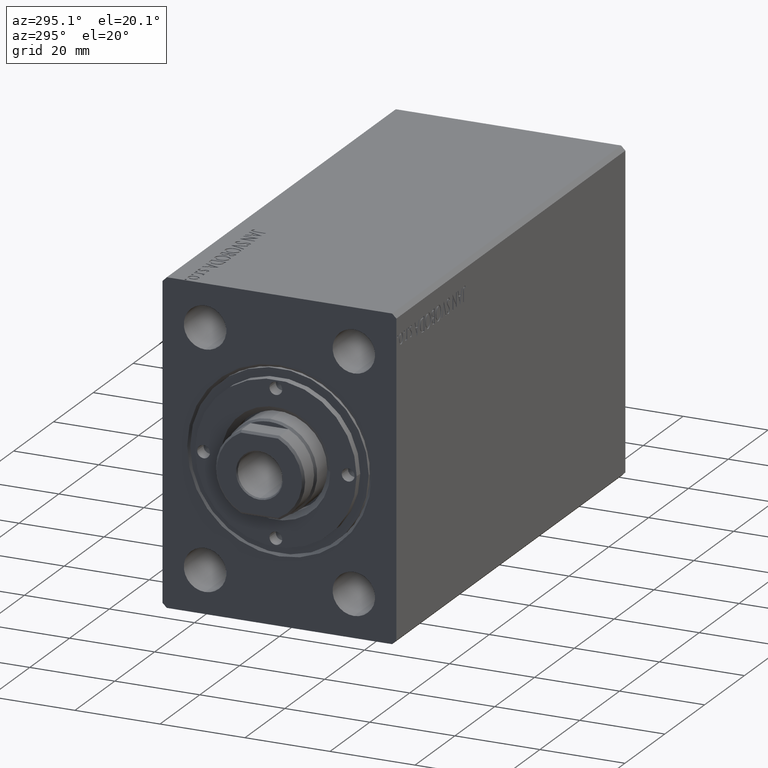
[diagram: clean part render]
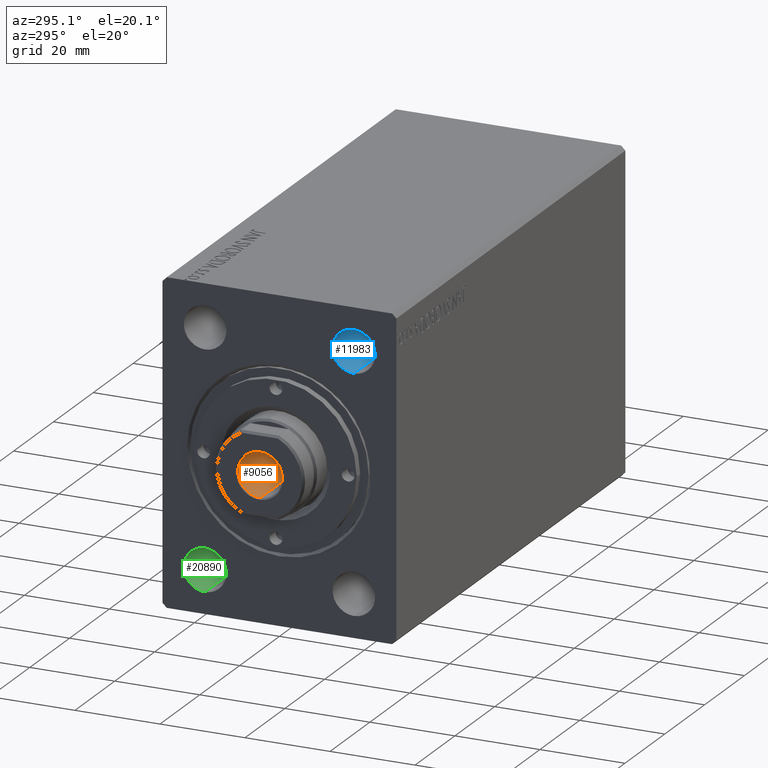
[diagram: same view with three faces highlighted in distinct colors, each labeled with its STEP entity id]
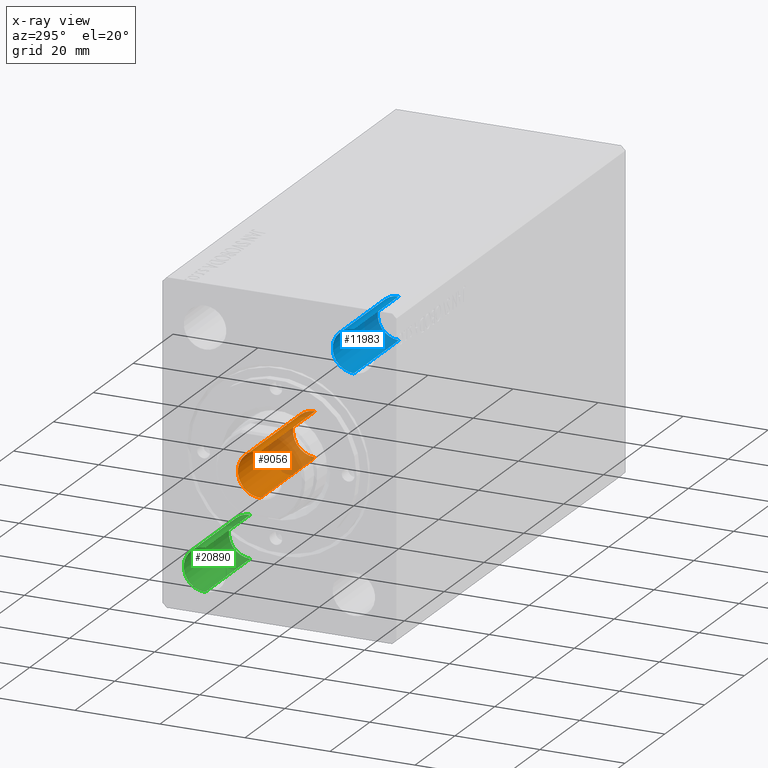
[diagram: x-ray of the same camera — body ghosted, the three highlighted faces saturated]
A machine part, auxiliary view with three faces highlighted in distinct colors.
The next image is the same camera in x-ray (body ghosted, the three faces saturated) — at least one of them is partly hidden behind the body in this view.
Their STEP definitions:

[orange] entity #9056 — the highlighted cylindrical surface (edge-blend (fillet) strip) has radius 5.25 mm, axis along (-1, 0, 0).
#1833 = EDGE_CURVE ( 'NONE', #14322, #12120, #2957, .T. ) ;
#2649 = DIRECTION ( 'NONE',  ( 0.000000000000000000, 0.000000000000000000, 1.000000000000000000 ) ) ;
#2957 = LINE ( 'NONE', #36890, #5351 ) ;
#4199 = ORIENTED_EDGE ( 'NONE', *, *, #30542, .T. ) ;
#5351 = VECTOR ( 'NONE', #32056, 1000.000000000000000 ) ;
#5750 = ORIENTED_EDGE ( 'NONE', *, *, #1833, .F. ) ;
#6673 = CARTESIAN_POINT ( 'NONE',  ( -5.249999999999995559, 6.429395695523600208E-16, 110.9000000000000199 ) ) ;
#6983 = EDGE_LOOP ( 'NONE', ( #5750, #37624, #37239, #4199 ) ) ;
#7750 = DIRECTION ( 'NONE',  ( 1.000000000000000000, 0.000000000000000000, 0.000000000000000000 ) ) ;
#9056 = ADVANCED_FACE ( 'NONE', ( #33706 ), #16773, .F. ) ;
#10065 = DIRECTION ( 'NONE',  ( 1.000000000000000000, 0.000000000000000000, 0.000000000000000000 ) ) ;
#10133 = AXIS2_PLACEMENT_3D ( 'NONE', #26760, #2649, #16288 ) ;
#12120 = VERTEX_POINT ( 'NONE', #6673 ) ;
#13836 = CARTESIAN_POINT ( 'NONE',  ( -5.249999999999994671, 6.429395695523597250E-16, 83.20000000000001705 ) ) ;
#14322 = VERTEX_POINT ( 'NONE', #13836 ) ;
#16288 = DIRECTION ( 'NONE',  ( 1.000000000000000000, 0.000000000000000000, 0.000000000000000000 ) ) ;
#16773 = CYLINDRICAL_SURFACE ( 'NONE', #23525, 5.249999999999995559 ) ;
#18275 = CIRCLE ( 'NONE', #23965, 5.249999999999994671 ) ;
#19115 = CARTESIAN_POINT ( 'NONE',  ( 5.249999999999995559, 0.000000000000000000, 110.9000000000000199 ) ) ;
#20115 = CIRCLE ( 'NONE', #10133, 5.249999999999995559 ) ;
#23249 = VECTOR ( 'NONE', #31662, 1000.000000000000000 ) ;
#23525 = AXIS2_PLACEMENT_3D ( 'NONE', #30364, #37271, #10065 ) ;
#23965 = AXIS2_PLACEMENT_3D ( 'NONE', #28949, #41659, #7750 ) ;
#26760 = CARTESIAN_POINT ( 'NONE',  ( 0.000000000000000000, 0.000000000000000000, 110.9000000000000199 ) ) ;
#28213 = VERTEX_POINT ( 'NONE', #19115 ) ;
#28949 = CARTESIAN_POINT ( 'NONE',  ( 0.000000000000000000, 0.000000000000000000, 83.20000000000001705 ) ) ;
#30150 = CARTESIAN_POINT ( 'NONE',  ( 5.249999999999994671, 0.000000000000000000, 83.20000000000001705 ) ) ;
#30364 = CARTESIAN_POINT ( 'NONE',  ( 0.000000000000000000, 0.000000000000000000, 111.2000000000000028 ) ) ;
#30542 = EDGE_CURVE ( 'NONE', #28213, #12120, #20115, .T. ) ;
#31662 = DIRECTION ( 'NONE',  ( -0.000000000000000000, -0.000000000000000000, 1.000000000000000000 ) ) ;
#32056 = DIRECTION ( 'NONE',  ( -0.000000000000000000, -0.000000000000000000, 1.000000000000000000 ) ) ;
#33706 = FACE_OUTER_BOUND ( 'NONE', #6983, .T. ) ;
#35236 = LINE ( 'NONE', #39035, #23249 ) ;
#36890 = CARTESIAN_POINT ( 'NONE',  ( -5.249999999999995559, 6.429395695523600208E-16, 111.2000000000000028 ) ) ;
#37239 = ORIENTED_EDGE ( 'NONE', *, *, #40911, .T. ) ;
#37271 = DIRECTION ( 'NONE',  ( -0.000000000000000000, -0.000000000000000000, 1.000000000000000000 ) ) ;
#37624 = ORIENTED_EDGE ( 'NONE', *, *, #42018, .F. ) ;
#39035 = CARTESIAN_POINT ( 'NONE',  ( 5.249999999999995559, 0.000000000000000000, 111.2000000000000028 ) ) ;
#40911 = EDGE_CURVE ( 'NONE', #42783, #28213, #35236, .T. ) ;
#41659 = DIRECTION ( 'NONE',  ( -0.000000000000000000, -0.000000000000000000, 1.000000000000000000 ) ) ;
#42018 = EDGE_CURVE ( 'NONE', #42783, #14322, #18275, .T. ) ;
#42783 = VERTEX_POINT ( 'NONE', #30150 ) ;

[blue] entity #11983 — the highlighted cylindrical surface (edge-blend (fillet) strip) has radius 5 mm, axis along (-1, -0, -0).
#194 = DIRECTION ( 'NONE',  ( -1.000000000000000000, -0.000000000000000000, -0.000000000000000000 ) ) ;
#1517 = CARTESIAN_POINT ( 'NONE',  ( 1.224646799147350495E-16, -17.50000000000000000, 27.50000000000000355 ) ) ;
#3419 = EDGE_CURVE ( 'NONE', #41405, #21953, #38170, .T. ) ;
#4528 = DIRECTION ( 'NONE',  ( -1.000000000000000000, -0.000000000000000000, -0.000000000000000000 ) ) ;
#4686 = CARTESIAN_POINT ( 'NONE',  ( 1.224646799147350495E-16, -17.50000000000000000, 32.50000000000000000 ) ) ;
#6340 = ORIENTED_EDGE ( 'NONE', *, *, #14561, .T. ) ;
#8774 = LINE ( 'NONE', #32194, #16011 ) ;
#10043 = CYLINDRICAL_SURFACE ( 'NONE', #34449, 4.999999999999997335 ) ;
#10531 = CARTESIAN_POINT ( 'NONE',  ( 22.67000000000000171, -17.50000000000000000, 22.50000000000001066 ) ) ;
#11366 = DIRECTION ( 'NONE',  ( -1.000000000000000000, -0.000000000000000000, -0.000000000000000000 ) ) ;
#11983 = ADVANCED_FACE ( 'NONE', ( #27440 ), #10043, .F. ) ;
#13721 = VECTOR ( 'NONE', #24113, 1000.000000000000000 ) ;
#14561 = EDGE_CURVE ( 'NONE', #41405, #31265, #8774, .T. ) ;
#15916 = EDGE_CURVE ( 'NONE', #31265, #39447, #43907, .T. ) ;
#16011 = VECTOR ( 'NONE', #4528, 1000.000000000000000 ) ;
#17092 = CARTESIAN_POINT ( 'NONE',  ( 22.67000000000000171, -17.50000000000000000, 32.50000000000000000 ) ) ;
#18091 = LINE ( 'NONE', #21220, #13721 ) ;
#18798 = DIRECTION ( 'NONE',  ( 0.000000000000000000, 0.000000000000000000, 1.000000000000000000 ) ) ;
#18943 = AXIS2_PLACEMENT_3D ( 'NONE', #42867, #32609, #18798 ) ;
#19044 = ORIENTED_EDGE ( 'NONE', *, *, #15916, .T. ) ;
#20409 = AXIS2_PLACEMENT_3D ( 'NONE', #1517, #11366, #35663 ) ;
#20528 = DIRECTION ( 'NONE',  ( 0.000000000000000000, 0.000000000000000000, 1.000000000000000000 ) ) ;
#21220 = CARTESIAN_POINT ( 'NONE',  ( 0.000000000000000000, -17.50000000000000000, 22.50000000000000711 ) ) ;
#21953 = VERTEX_POINT ( 'NONE', #10531 ) ;
#24113 = DIRECTION ( 'NONE',  ( -1.000000000000000000, -0.000000000000000000, -0.000000000000000000 ) ) ;
#27307 = CARTESIAN_POINT ( 'NONE',  ( 1.224646799147350495E-16, -17.50000000000000000, 22.50000000000000711 ) ) ;
#27440 = FACE_OUTER_BOUND ( 'NONE', #27650, .T. ) ;
#27650 = EDGE_LOOP ( 'NONE', ( #28652, #38001, #6340, #19044 ) ) ;
#28652 = ORIENTED_EDGE ( 'NONE', *, *, #29858, .F. ) ;
#29858 = EDGE_CURVE ( 'NONE', #21953, #39447, #18091, .T. ) ;
#30555 = CARTESIAN_POINT ( 'NONE',  ( 0.000000000000000000, -17.50000000000000000, 27.50000000000000355 ) ) ;
#31265 = VERTEX_POINT ( 'NONE', #4686 ) ;
#32194 = CARTESIAN_POINT ( 'NONE',  ( 0.000000000000000000, -17.50000000000000000, 32.50000000000000000 ) ) ;
#32609 = DIRECTION ( 'NONE',  ( -1.000000000000000000, -0.000000000000000000, -0.000000000000000000 ) ) ;
#34449 = AXIS2_PLACEMENT_3D ( 'NONE', #30555, #194, #20528 ) ;
#35663 = DIRECTION ( 'NONE',  ( 0.000000000000000000, 0.000000000000000000, 1.000000000000000000 ) ) ;
#38001 = ORIENTED_EDGE ( 'NONE', *, *, #3419, .F. ) ;
#38170 = CIRCLE ( 'NONE', #18943, 4.999999999999997335 ) ;
#39447 = VERTEX_POINT ( 'NONE', #27307 ) ;
#41405 = VERTEX_POINT ( 'NONE', #17092 ) ;
#42867 = CARTESIAN_POINT ( 'NONE',  ( 22.67000000000000171, -17.50000000000000000, 27.50000000000000355 ) ) ;
#43907 = CIRCLE ( 'NONE', #20409, 4.999999999999997335 ) ;

[green] entity #20890 — the highlighted cylindrical surface (edge-blend (fillet) strip) has radius 5 mm, axis along (-1, -0, -0).
#610 = ORIENTED_EDGE ( 'NONE', *, *, #21487, .T. ) ;
#757 = AXIS2_PLACEMENT_3D ( 'NONE', #26885, #33565, #12854 ) ;
#4697 = ORIENTED_EDGE ( 'NONE', *, *, #41695, .F. ) ;
#5184 = FACE_OUTER_BOUND ( 'NONE', #6543, .T. ) ;
#6543 = EDGE_LOOP ( 'NONE', ( #26988, #4697, #40283, #610 ) ) ;
#7426 = CARTESIAN_POINT ( 'NONE',  ( 22.67000000000000171, 17.50000000000000000, -32.49999999999998579 ) ) ;
#7884 = EDGE_CURVE ( 'NONE', #39943, #31590, #40563, .T. ) ;
#8025 = DIRECTION ( 'NONE',  ( 0.000000000000000000, 0.000000000000000000, 1.000000000000000000 ) ) ;
#8334 = CARTESIAN_POINT ( 'NONE',  ( 0.000000000000000000, 17.50000000000000000, -27.49999999999999289 ) ) ;
#8588 = CIRCLE ( 'NONE', #757, 4.999999999999997335 ) ;
#11039 = VERTEX_POINT ( 'NONE', #7426 ) ;
#12854 = DIRECTION ( 'NONE',  ( 0.000000000000000000, 0.000000000000000000, 1.000000000000000000 ) ) ;
#14402 = DIRECTION ( 'NONE',  ( -1.000000000000000000, -0.000000000000000000, -0.000000000000000000 ) ) ;
#14623 = LINE ( 'NONE', #25096, #42298 ) ;
#14708 = AXIS2_PLACEMENT_3D ( 'NONE', #42146, #29215, #8025 ) ;
#16909 = CARTESIAN_POINT ( 'NONE',  ( 22.67000000000000171, 17.50000000000000000, -22.50000000000000000 ) ) ;
#20890 = ADVANCED_FACE ( 'NONE', ( #5184 ), #31974, .F. ) ;
#21487 = EDGE_CURVE ( 'NONE', #31590, #44061, #8588, .T. ) ;
#25096 = CARTESIAN_POINT ( 'NONE',  ( 0.000000000000000000, 17.50000000000000000, -32.49999999999998579 ) ) ;
#26885 = CARTESIAN_POINT ( 'NONE',  ( 1.224646799147350495E-16, 17.50000000000000000, -27.49999999999999289 ) ) ;
#26956 = DIRECTION ( 'NONE',  ( -1.000000000000000000, -0.000000000000000000, -0.000000000000000000 ) ) ;
#26988 = ORIENTED_EDGE ( 'NONE', *, *, #33480, .F. ) ;
#28061 = CARTESIAN_POINT ( 'NONE',  ( 1.224646799147350495E-16, 17.50000000000000000, -32.49999999999998579 ) ) ;
#28234 = CIRCLE ( 'NONE', #14708, 4.999999999999993783 ) ;
#28302 = CARTESIAN_POINT ( 'NONE',  ( 1.224646799147350495E-16, 17.50000000000000000, -22.49999999999999645 ) ) ;
#28417 = DIRECTION ( 'NONE',  ( -1.000000000000000000, -0.000000000000000000, -0.000000000000000000 ) ) ;
#29215 = DIRECTION ( 'NONE',  ( -1.000000000000000000, -0.000000000000000000, -0.000000000000000000 ) ) ;
#31590 = VERTEX_POINT ( 'NONE', #28302 ) ;
#31974 = CYLINDRICAL_SURFACE ( 'NONE', #37078, 4.999999999999993783 ) ;
#33480 = EDGE_CURVE ( 'NONE', #11039, #44061, #14623, .T. ) ;
#33565 = DIRECTION ( 'NONE',  ( -1.000000000000000000, -0.000000000000000000, -0.000000000000000000 ) ) ;
#37078 = AXIS2_PLACEMENT_3D ( 'NONE', #8334, #28417, #42011 ) ;
#39943 = VERTEX_POINT ( 'NONE', #16909 ) ;
#40283 = ORIENTED_EDGE ( 'NONE', *, *, #7884, .T. ) ;
#40563 = LINE ( 'NONE', #43466, #41963 ) ;
#41695 = EDGE_CURVE ( 'NONE', #39943, #11039, #28234, .T. ) ;
#41963 = VECTOR ( 'NONE', #26956, 1000.000000000000000 ) ;
#42011 = DIRECTION ( 'NONE',  ( 0.000000000000000000, 0.000000000000000000, 1.000000000000000000 ) ) ;
#42146 = CARTESIAN_POINT ( 'NONE',  ( 22.67000000000000171, 17.50000000000000000, -27.49999999999999289 ) ) ;
#42298 = VECTOR ( 'NONE', #14402, 1000.000000000000000 ) ;
#43466 = CARTESIAN_POINT ( 'NONE',  ( 0.000000000000000000, 17.50000000000000000, -22.50000000000000000 ) ) ;
#44061 = VERTEX_POINT ( 'NONE', #28061 ) ;